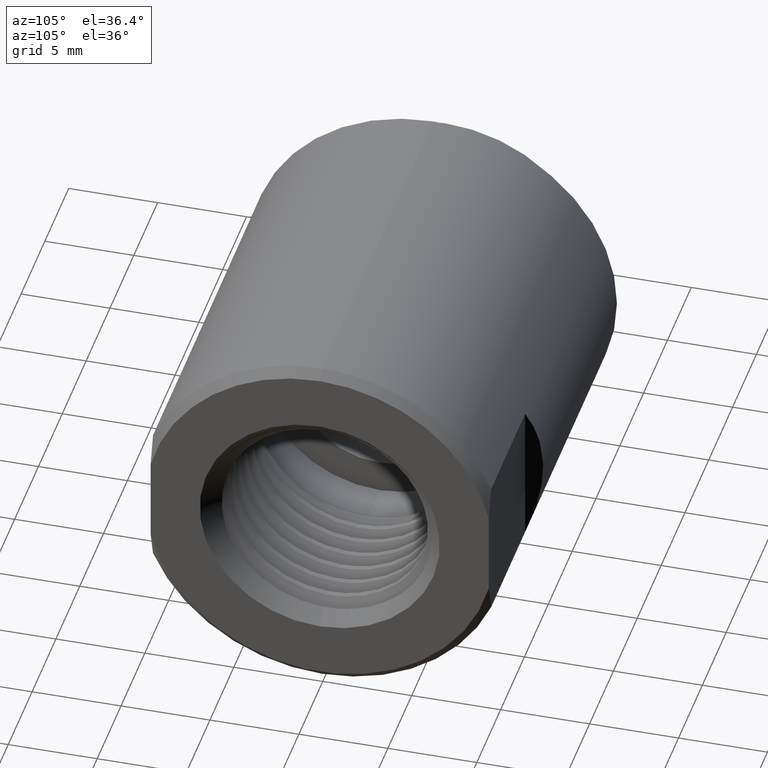
[diagram: clean part render]
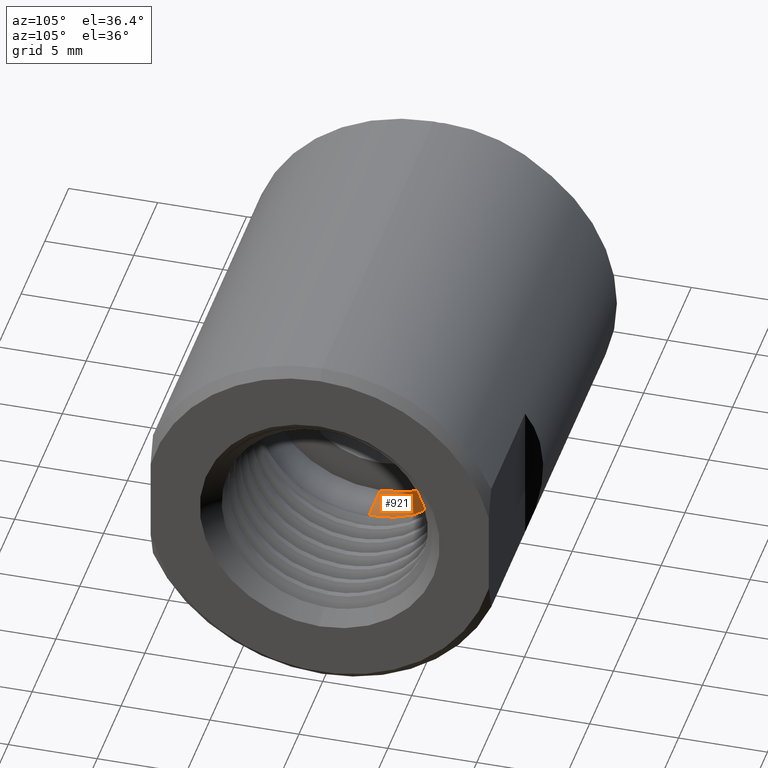
[diagram: same view with one face highlighted and labeled with its STEP entity id]
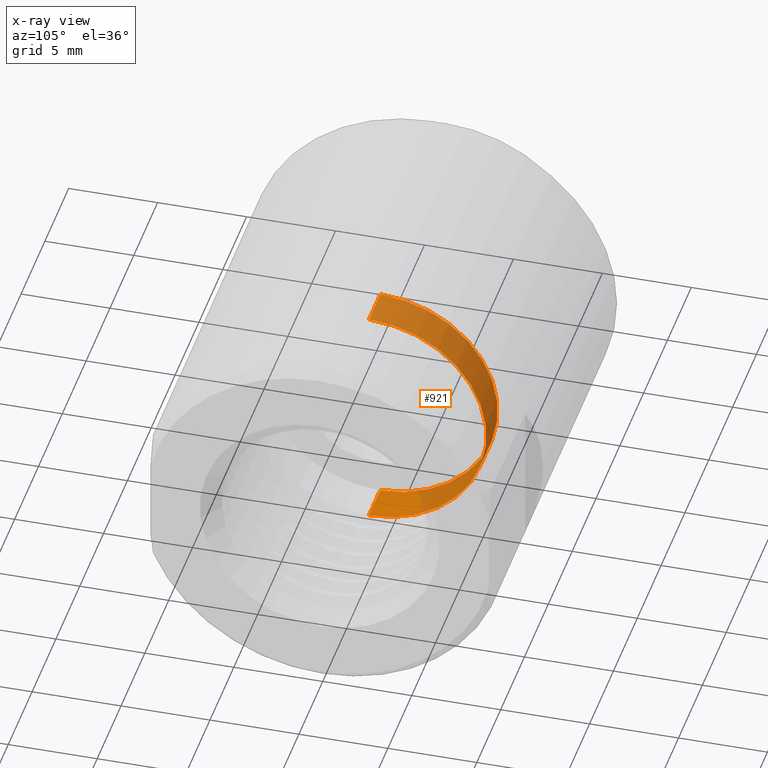
[diagram: x-ray of the same camera — body ghosted, the highlighted face saturated]
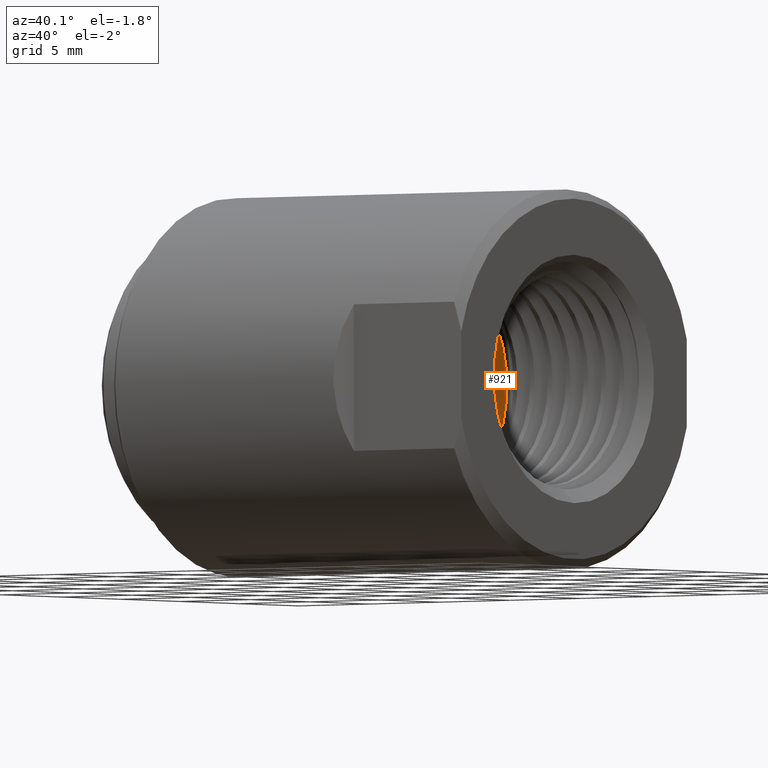
[diagram: same view with one face highlighted and labeled with its STEP entity id]
A machine part, auxiliary view. The second image highlights one B-rep face of the part: STEP entity #921.
The next image is the same camera in x-ray: the body ghosted, the highlighted face saturated — about 83% of this face is hidden behind the body in this view.
A second angle (auxiliary view) of the same face is appended — the face is thin or edge-on in the first view.
In plain terms, the highlighted cylindrical surface (partial cylindrical patch) has radius 6.604 mm, axis along (-1, -0, -0).
Its self-contained STEP definition (entity closure, byte-faithful):
#13 = DIRECTION ( 'NONE',  ( 0.0000000000000000000, 0.0000000000000000000, 1.000000000000000000 ) ) ;
#921 = ADVANCED_FACE ( 'NONE', ( #9879 ), #9829, .F. ) ;
#1346 = VERTEX_POINT ( 'NONE', #5992 ) ;
#1622 = DIRECTION ( 'NONE',  ( 0.0000000000000000000, 0.0000000000000000000, 1.000000000000000000 ) ) ;
#1638 = EDGE_CURVE ( 'NONE', #5883, #5331, #2691, .T. ) ;
#1695 = CARTESIAN_POINT ( 'NONE',  ( 0.3119999999999998885, 0.0000000000000000000, 0.2600000000000001199 ) ) ;
#1983 = CARTESIAN_POINT ( 'NONE',  ( 0.0000000000000000000, 0.0000000000000000000, 0.2600000000000001199 ) ) ;
#2357 = VECTOR ( 'NONE', #4241, 39.37007874015748143 ) ;
#2522 = AXIS2_PLACEMENT_3D ( 'NONE', #7575, #9004, #1622 ) ;
#2523 = AXIS2_PLACEMENT_3D ( 'NONE', #8846, #3984, #13 ) ;
#2691 = LINE ( 'NONE', #1983, #8895 ) ;
#2694 = CARTESIAN_POINT ( 'NONE',  ( 0.0000000000000000000, 3.184081677783119916E-17, -0.2600000000000001199 ) ) ;
#3984 = DIRECTION ( 'NONE',  ( -1.000000000000000000, -0.0000000000000000000, -0.0000000000000000000 ) ) ;
#4121 = ORIENTED_EDGE ( 'NONE', *, *, #1638, .T. ) ;
#4149 = CARTESIAN_POINT ( 'NONE',  ( 0.4059999999999999720, 3.184081677783120533E-17, -0.2600000000000001754 ) ) ;
#4188 = LINE ( 'NONE', #2694, #2357 ) ;
#4241 = DIRECTION ( 'NONE',  ( -1.000000000000000000, -0.0000000000000000000, -0.0000000000000000000 ) ) ;
#4694 = VERTEX_POINT ( 'NONE', #4149 ) ;
#5017 = ORIENTED_EDGE ( 'NONE', *, *, #8099, .F. ) ;
#5025 = DIRECTION ( 'NONE',  ( -1.000000000000000000, -0.0000000000000000000, -0.0000000000000000000 ) ) ;
#5087 = CIRCLE ( 'NONE', #2523, 0.2600000000000001199 ) ;
#5331 = VERTEX_POINT ( 'NONE', #1695 ) ;
#5883 = VERTEX_POINT ( 'NONE', #10670 ) ;
#5992 = CARTESIAN_POINT ( 'NONE',  ( 0.3119999999999998885, 3.184081677783119916E-17, -0.2600000000000001199 ) ) ;
#6620 = AXIS2_PLACEMENT_3D ( 'NONE', #10221, #5025, #7620 ) ;
#6879 = DIRECTION ( 'NONE',  ( -1.000000000000000000, -0.0000000000000000000, -0.0000000000000000000 ) ) ;
#7067 = ORIENTED_EDGE ( 'NONE', *, *, #10616, .F. ) ;
#7113 = ORIENTED_EDGE ( 'NONE', *, *, #10440, .T. ) ;
#7575 = CARTESIAN_POINT ( 'NONE',  ( 0.0000000000000000000, 0.0000000000000000000, 0.0000000000000000000 ) ) ;
#7620 = DIRECTION ( 'NONE',  ( 0.0000000000000000000, 0.0000000000000000000, 1.000000000000000000 ) ) ;
#8099 = EDGE_CURVE ( 'NONE', #5883, #4694, #8513, .T. ) ;
#8513 = CIRCLE ( 'NONE', #6620, 0.2600000000000001754 ) ;
#8846 = CARTESIAN_POINT ( 'NONE',  ( 0.3119999999999998885, 0.0000000000000000000, 0.0000000000000000000 ) ) ;
#8865 = EDGE_LOOP ( 'NONE', ( #7067, #5017, #4121, #7113 ) ) ;
#8895 = VECTOR ( 'NONE', #6879, 39.37007874015748143 ) ;
#9004 = DIRECTION ( 'NONE',  ( -1.000000000000000000, -0.0000000000000000000, -0.0000000000000000000 ) ) ;
#9829 = CYLINDRICAL_SURFACE ( 'NONE', #2522, 0.2600000000000001199 ) ;
#9879 = FACE_OUTER_BOUND ( 'NONE', #8865, .T. ) ;
#10221 = CARTESIAN_POINT ( 'NONE',  ( 0.4059999999999999720, 0.0000000000000000000, 0.0000000000000000000 ) ) ;
#10440 = EDGE_CURVE ( 'NONE', #5331, #1346, #5087, .T. ) ;
#10616 = EDGE_CURVE ( 'NONE', #4694, #1346, #4188, .T. ) ;
#10670 = CARTESIAN_POINT ( 'NONE',  ( 0.4059999999999999720, 0.0000000000000000000, 0.2600000000000001754 ) ) ;